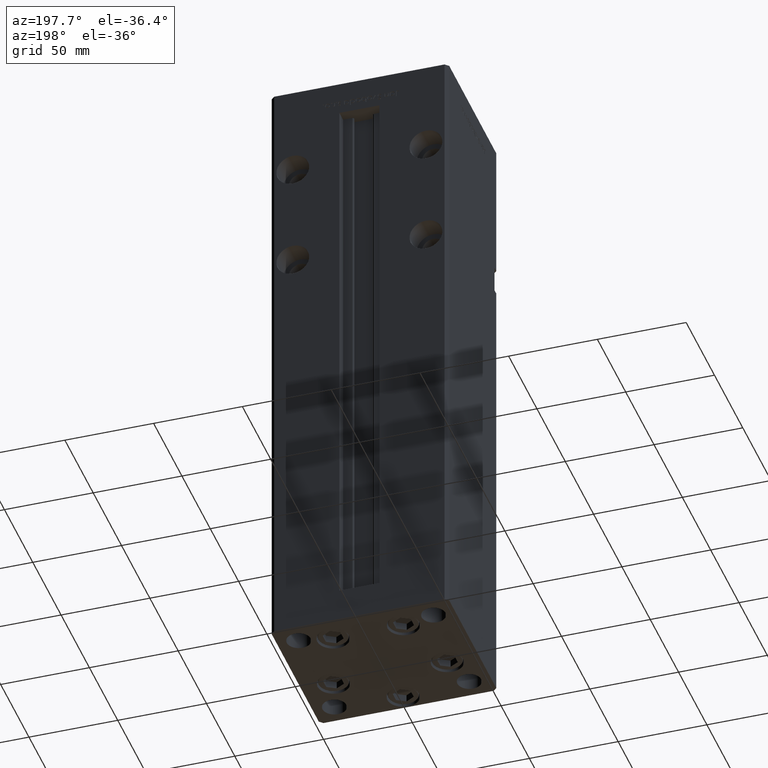
[diagram: clean part render]
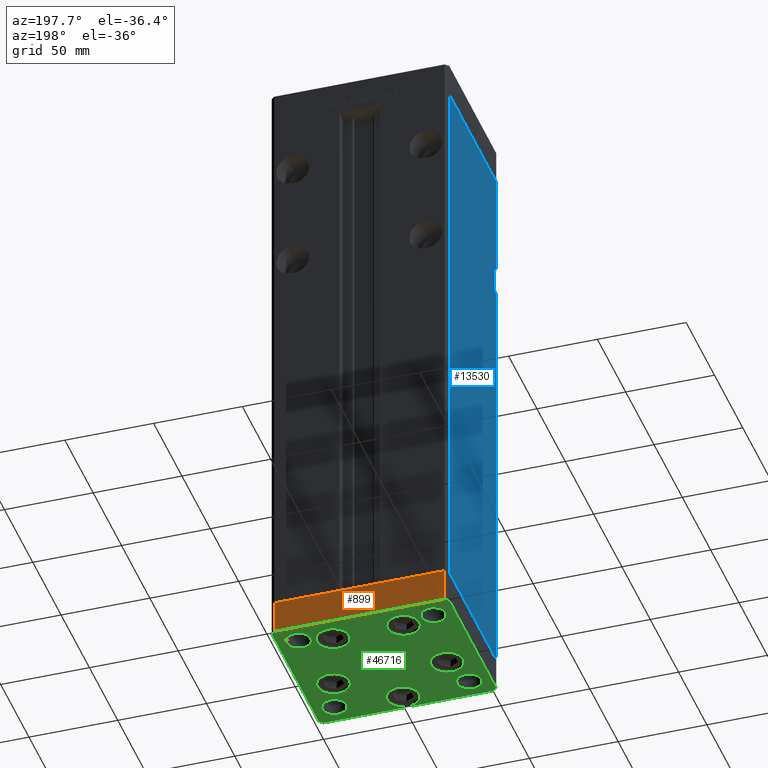
[diagram: same view with three faces highlighted in distinct colors, each labeled with its STEP entity id]
A machine part, auxiliary view with three faces highlighted in distinct colors.
Their STEP definitions:

[orange] entity #899 — the highlighted planar face has unit normal (-0, 1, 0).
#798 = CARTESIAN_POINT ( 'NONE',  ( -48.00000000000000711, 43.49999999999996447, -19.00000000000000000 ) ) ;
#899 = ADVANCED_FACE ( 'NONE', ( #23298 ), #39692, .T. ) ;
#979 = CARTESIAN_POINT ( 'NONE',  ( 47.99999999999990763, 43.50000000000000000, 0.000000000000000000 ) ) ;
#1071 = LINE ( 'NONE', #17456, #52730 ) ;
#3395 = DIRECTION ( 'NONE',  ( -3.614007241618350743E-16, 1.000000000000000000, 0.000000000000000000 ) ) ;
#4112 = CARTESIAN_POINT ( 'NONE',  ( -48.00000000000000711, 43.49999999999996447, 0.000000000000000000 ) ) ;
#5302 = VECTOR ( 'NONE', #21623, 1000.000000000000000 ) ;
#5894 = EDGE_CURVE ( 'NONE', #36776, #20163, #46331, .T. ) ;
#9705 = ORIENTED_EDGE ( 'NONE', *, *, #5894, .F. ) ;
#12896 = EDGE_CURVE ( 'NONE', #20163, #24208, #45319, .T. ) ;
#13439 = DIRECTION ( 'NONE',  ( 0.000000000000000000, 0.000000000000000000, 1.000000000000000000 ) ) ;
#16296 = AXIS2_PLACEMENT_3D ( 'NONE', #41201, #3395, #23031 ) ;
#17456 = CARTESIAN_POINT ( 'NONE',  ( -48.00000000000000711, 43.49999999999996447, -19.00000000000000000 ) ) ;
#19386 = ORIENTED_EDGE ( 'NONE', *, *, #51600, .T. ) ;
#20163 = VERTEX_POINT ( 'NONE', #29040 ) ;
#21623 = DIRECTION ( 'NONE',  ( 0.000000000000000000, 0.000000000000000000, 1.000000000000000000 ) ) ;
#23031 = DIRECTION ( 'NONE',  ( -1.000000000000000000, -3.614007241618350743E-16, 0.000000000000000000 ) ) ;
#23298 = FACE_OUTER_BOUND ( 'NONE', #51736, .T. ) ;
#24208 = VERTEX_POINT ( 'NONE', #4112 ) ;
#24885 = DIRECTION ( 'NONE',  ( -1.000000000000000000, -3.614007241618350743E-16, 0.000000000000000000 ) ) ;
#27444 = VERTEX_POINT ( 'NONE', #798 ) ;
#28284 = VECTOR ( 'NONE', #34220, 1000.000000000000000 ) ;
#29040 = CARTESIAN_POINT ( 'NONE',  ( 47.99999999999990763, 43.50000000000000000, 0.000000000000000000 ) ) ;
#30980 = LINE ( 'NONE', #47365, #28284 ) ;
#31998 = EDGE_CURVE ( 'NONE', #27444, #24208, #1071, .T. ) ;
#34220 = DIRECTION ( 'NONE',  ( -1.000000000000000000, -3.614007241618350743E-16, 0.000000000000000000 ) ) ;
#36776 = VERTEX_POINT ( 'NONE', #46236 ) ;
#37500 = ORIENTED_EDGE ( 'NONE', *, *, #12896, .F. ) ;
#39692 = PLANE ( 'NONE',  #16296 ) ;
#39827 = VECTOR ( 'NONE', #24885, 1000.000000000000000 ) ;
#41201 = CARTESIAN_POINT ( 'NONE',  ( 47.99999999999990763, 43.50000000000000000, -19.00000000000000000 ) ) ;
#42036 = CARTESIAN_POINT ( 'NONE',  ( 47.99999999999990763, 43.50000000000000000, -19.00000000000000000 ) ) ;
#45319 = LINE ( 'NONE', #979, #39827 ) ;
#46236 = CARTESIAN_POINT ( 'NONE',  ( 47.99999999999990763, 43.50000000000000000, -19.00000000000000000 ) ) ;
#46331 = LINE ( 'NONE', #42036, #5302 ) ;
#46543 = ORIENTED_EDGE ( 'NONE', *, *, #31998, .T. ) ;
#47365 = CARTESIAN_POINT ( 'NONE',  ( 47.99999999999990763, 43.50000000000000000, -19.00000000000000000 ) ) ;
#51600 = EDGE_CURVE ( 'NONE', #36776, #27444, #30980, .T. ) ;
#51736 = EDGE_LOOP ( 'NONE', ( #37500, #9705, #19386, #46543 ) ) ;
#52730 = VECTOR ( 'NONE', #13439, 1000.000000000000000 ) ;

[blue] entity #13530 — the highlighted planar face has unit normal (1, 0, 0).
#248 = DIRECTION ( 'NONE',  ( -3.344045254895050480E-16, 1.000000000000000000, 0.000000000000000000 ) ) ;
#699 = ORIENTED_EDGE ( 'NONE', *, *, #46901, .F. ) ;
#986 = ORIENTED_EDGE ( 'NONE', *, *, #23422, .T. ) ;
#2800 = CARTESIAN_POINT ( 'NONE',  ( -49.99999999999998579, -38.50000000000000000, 259.0000000000000000 ) ) ;
#3409 = LINE ( 'NONE', #48295, #15308 ) ;
#4620 = VERTEX_POINT ( 'NONE', #22922 ) ;
#4817 = DIRECTION ( 'NONE',  ( 1.000000000000000000, 3.344045254895050480E-16, -0.000000000000000000 ) ) ;
#6465 = CARTESIAN_POINT ( 'NONE',  ( -49.99999999999998579, -38.50000000000000000, 259.0000000000000000 ) ) ;
#7266 = VECTOR ( 'NONE', #37842, 1000.000000000000000 ) ;
#7449 = DIRECTION ( 'NONE',  ( -0.000000000000000000, -0.000000000000000000, -1.000000000000000000 ) ) ;
#7753 = VERTEX_POINT ( 'NONE', #16060 ) ;
#9583 = CARTESIAN_POINT ( 'NONE',  ( -49.99999999999998579, -38.50000000000000000, 244.0000000000000000 ) ) ;
#12339 = ORIENTED_EDGE ( 'NONE', *, *, #33015, .F. ) ;
#13530 = ADVANCED_FACE ( 'NONE', ( #46204 ), #17164, .F. ) ;
#14399 = DIRECTION ( 'NONE',  ( -0.000000000000000000, -1.000000000000000000, -0.000000000000000000 ) ) ;
#14751 = ORIENTED_EDGE ( 'NONE', *, *, #20686, .F. ) ;
#15308 = VECTOR ( 'NONE', #7449, 1000.000000000000000 ) ;
#15694 = VERTEX_POINT ( 'NONE', #28016 ) ;
#15977 = CARTESIAN_POINT ( 'NONE',  ( -49.99999999999998579, -38.50000000000000000, 244.0000000000000000 ) ) ;
#16060 = CARTESIAN_POINT ( 'NONE',  ( -50.00000000000001421, 41.49999999999999289, 318.5000000000000000 ) ) ;
#16325 = ORIENTED_EDGE ( 'NONE', *, *, #43694, .F. ) ;
#16810 = LINE ( 'NONE', #33229, #29585 ) ;
#17164 = PLANE ( 'NONE',  #31274 ) ;
#19497 = EDGE_CURVE ( 'NONE', #41137, #47411, #16810, .T. ) ;
#20686 = EDGE_CURVE ( 'NONE', #41137, #43715, #35596, .T. ) ;
#21115 = ORIENTED_EDGE ( 'NONE', *, *, #42721, .F. ) ;
#21758 = CARTESIAN_POINT ( 'NONE',  ( -50.00000000000001421, 41.49999999999999289, 318.5000000000000000 ) ) ;
#22122 = VERTEX_POINT ( 'NONE', #48229 ) ;
#22922 = CARTESIAN_POINT ( 'NONE',  ( -49.99999999999998579, -41.49999999999999289, 0.000000000000000000 ) ) ;
#23422 = EDGE_CURVE ( 'NONE', #7753, #24715, #25262, .T. ) ;
#24715 = VERTEX_POINT ( 'NONE', #48017 ) ;
#24924 = CARTESIAN_POINT ( 'NONE',  ( -49.99999999999998579, -41.49999999999999289, 318.5000000000000000 ) ) ;
#25262 = LINE ( 'NONE', #45418, #49444 ) ;
#27509 = EDGE_LOOP ( 'NONE', ( #12339, #699, #14751, #44566, #21115, #16325, #986, #33493 ) ) ;
#28016 = CARTESIAN_POINT ( 'NONE',  ( -49.99999999999998579, -41.49999999999999289, 318.5000000000000000 ) ) ;
#28386 = CARTESIAN_POINT ( 'NONE',  ( -49.99999999999998579, -41.49999999999999289, 259.0000000000000000 ) ) ;
#29585 = VECTOR ( 'NONE', #53112, 1000.000000000000000 ) ;
#31274 = AXIS2_PLACEMENT_3D ( 'NONE', #21758, #4817, #248 ) ;
#31836 = DIRECTION ( 'NONE',  ( 0.000000000000000000, 0.000000000000000000, -1.000000000000000000 ) ) ;
#33015 = EDGE_CURVE ( 'NONE', #22122, #4620, #33806, .T. ) ;
#33229 = CARTESIAN_POINT ( 'NONE',  ( -49.99999999999998579, -38.50000000000000000, 259.0000000000000000 ) ) ;
#33493 = ORIENTED_EDGE ( 'NONE', *, *, #49321, .T. ) ;
#33806 = LINE ( 'NONE', #24924, #7266 ) ;
#33932 = VECTOR ( 'NONE', #31836, 1000.000000000000000 ) ;
#35112 = VECTOR ( 'NONE', #45198, 1000.000000000000000 ) ;
#35596 = LINE ( 'NONE', #2800, #33932 ) ;
#36868 = VECTOR ( 'NONE', #14399, 1000.000000000000000 ) ;
#37842 = DIRECTION ( 'NONE',  ( -0.000000000000000000, -0.000000000000000000, -1.000000000000000000 ) ) ;
#40184 = LINE ( 'NONE', #49027, #50518 ) ;
#40638 = CARTESIAN_POINT ( 'NONE',  ( -50.00000000000001421, 41.49999999999999289, 0.000000000000000000 ) ) ;
#41137 = VERTEX_POINT ( 'NONE', #6465 ) ;
#42721 = EDGE_CURVE ( 'NONE', #15694, #47411, #3409, .T. ) ;
#43694 = EDGE_CURVE ( 'NONE', #7753, #15694, #40184, .T. ) ;
#43715 = VERTEX_POINT ( 'NONE', #15977 ) ;
#44477 = DIRECTION ( 'NONE',  ( 3.344045254895050973E-16, -1.000000000000000000, 0.000000000000000000 ) ) ;
#44566 = ORIENTED_EDGE ( 'NONE', *, *, #19497, .T. ) ;
#45198 = DIRECTION ( 'NONE',  ( 3.344045254895050973E-16, -1.000000000000000000, 0.000000000000000000 ) ) ;
#45418 = CARTESIAN_POINT ( 'NONE',  ( -50.00000000000001421, 41.49999999999999289, 318.5000000000000000 ) ) ;
#45959 = DIRECTION ( 'NONE',  ( -0.000000000000000000, -0.000000000000000000, -1.000000000000000000 ) ) ;
#46204 = FACE_OUTER_BOUND ( 'NONE', #27509, .T. ) ;
#46901 = EDGE_CURVE ( 'NONE', #43715, #22122, #51234, .T. ) ;
#47411 = VERTEX_POINT ( 'NONE', #28386 ) ;
#48017 = CARTESIAN_POINT ( 'NONE',  ( -50.00000000000001421, 41.49999999999999289, 0.000000000000000000 ) ) ;
#48229 = CARTESIAN_POINT ( 'NONE',  ( -49.99999999999998579, -41.49999999999999289, 244.0000000000000000 ) ) ;
#48295 = CARTESIAN_POINT ( 'NONE',  ( -49.99999999999998579, -41.49999999999999289, 318.5000000000000000 ) ) ;
#49027 = CARTESIAN_POINT ( 'NONE',  ( -50.00000000000001421, 41.49999999999999289, 318.5000000000000000 ) ) ;
#49220 = LINE ( 'NONE', #40638, #35112 ) ;
#49321 = EDGE_CURVE ( 'NONE', #24715, #4620, #49220, .T. ) ;
#49444 = VECTOR ( 'NONE', #45959, 1000.000000000000000 ) ;
#50518 = VECTOR ( 'NONE', #44477, 1000.000000000000000 ) ;
#51234 = LINE ( 'NONE', #9583, #36868 ) ;
#53112 = DIRECTION ( 'NONE',  ( -0.000000000000000000, -1.000000000000000000, -0.000000000000000000 ) ) ;

[green] entity #46716 — the highlighted planar face has unit normal (0, 0, -1).
#90 = CARTESIAN_POINT ( 'NONE',  ( -50.00000000000000000, -41.50000000000000000, 0.000000000000000000 ) ) ;
#293 = CARTESIAN_POINT ( 'NONE',  ( -32.05550741379015278, -11.33333333333333925, 0.000000000000000000 ) ) ;
#466 = CIRCLE ( 'NONE', #20233, 9.000000000000000000 ) ;
#936 = EDGE_CURVE ( 'NONE', #4834, #39088, #33474, .T. ) ;
#979 = CARTESIAN_POINT ( 'NONE',  ( 47.99999999999990763, 43.50000000000000000, 0.000000000000000000 ) ) ;
#1016 = LINE ( 'NONE', #22244, #51892 ) ;
#1110 = EDGE_CURVE ( 'NONE', #20494, #5521, #41202, .T. ) ;
#1426 = CARTESIAN_POINT ( 'NONE',  ( 32.05550741379015278, -11.33333333333333037, 0.000000000000000000 ) ) ;
#1687 = EDGE_CURVE ( 'NONE', #39088, #4834, #36077, .T. ) ;
#1847 = ORIENTED_EDGE ( 'NONE', *, *, #42699, .T. ) ;
#1972 = DIRECTION ( 'NONE',  ( 1.000000000000000000, 0.000000000000000000, 0.000000000000000000 ) ) ;
#1976 = DIRECTION ( 'NONE',  ( 1.000000000000000000, 0.000000000000000000, 0.000000000000000000 ) ) ;
#2784 = CARTESIAN_POINT ( 'NONE',  ( -28.82068048781373548, 27.62499999999999645, 0.000000000000000000 ) ) ;
#2927 = DIRECTION ( 'NONE',  ( 1.000000000000000000, 0.000000000000000000, 0.000000000000000000 ) ) ;
#3163 = FACE_BOUND ( 'NONE', #49117, .T. ) ;
#3251 = ORIENTED_EDGE ( 'NONE', *, *, #1687, .T. ) ;
#3477 = ORIENTED_EDGE ( 'NONE', *, *, #33058, .T. ) ;
#3643 = CARTESIAN_POINT ( 'NONE',  ( 38.00000000000000000, -31.49999999999999289, 0.000000000000000000 ) ) ;
#4112 = CARTESIAN_POINT ( 'NONE',  ( -48.00000000000000711, 43.49999999999996447, 0.000000000000000000 ) ) ;
#4391 = DIRECTION ( 'NONE',  ( -0.7071067811865474617, 0.7071067811865474617, 0.000000000000000000 ) ) ;
#4594 = AXIS2_PLACEMENT_3D ( 'NONE', #51504, #18181, #38873 ) ;
#4834 = VERTEX_POINT ( 'NONE', #19945 ) ;
#5041 = VERTEX_POINT ( 'NONE', #19086 ) ;
#5070 = ORIENTED_EDGE ( 'NONE', *, *, #38358, .T. ) ;
#5521 = VERTEX_POINT ( 'NONE', #49900 ) ;
#6398 = CARTESIAN_POINT ( 'NONE',  ( 47.99999999999999289, -43.50000000000001421, 0.000000000000000000 ) ) ;
#6482 = CIRCLE ( 'NONE', #8162, 6.749999999999999112 ) ;
#6887 = ORIENTED_EDGE ( 'NONE', *, *, #52163, .T. ) ;
#6910 = AXIS2_PLACEMENT_3D ( 'NONE', #29972, #9272, #33466 ) ;
#6929 = DIRECTION ( 'NONE',  ( -0.000000000000000000, 0.000000000000000000, 1.000000000000000000 ) ) ;
#7171 = AXIS2_PLACEMENT_3D ( 'NONE', #28012, #40111, #15637 ) ;
#7331 = EDGE_LOOP ( 'NONE', ( #31989, #46771 ) ) ;
#7909 = EDGE_CURVE ( 'NONE', #47480, #33907, #38000, .T. ) ;
#7982 = AXIS2_PLACEMENT_3D ( 'NONE', #31700, #27129, #2927 ) ;
#8130 = VERTEX_POINT ( 'NONE', #31026 ) ;
#8162 = AXIS2_PLACEMENT_3D ( 'NONE', #45425, #8875, #40348 ) ;
#8256 = CIRCLE ( 'NONE', #50370, 9.000000000000000000 ) ;
#8439 = CARTESIAN_POINT ( 'NONE',  ( 47.99999999999999289, -43.50000000000001421, 0.000000000000000000 ) ) ;
#8506 = DIRECTION ( 'NONE',  ( 1.000000000000000000, 0.000000000000000000, 0.000000000000000000 ) ) ;
#8875 = DIRECTION ( 'NONE',  ( -0.000000000000000000, 0.000000000000000000, 1.000000000000000000 ) ) ;
#9272 = DIRECTION ( 'NONE',  ( 0.000000000000000000, -0.000000000000000000, -1.000000000000000000 ) ) ;
#9591 = EDGE_CURVE ( 'NONE', #13537, #28808, #26015, .T. ) ;
#9877 = EDGE_LOOP ( 'NONE', ( #33327, #18667 ) ) ;
#10305 = DIRECTION ( 'NONE',  ( 0.000000000000000000, -0.000000000000000000, -1.000000000000000000 ) ) ;
#10406 = CARTESIAN_POINT ( 'NONE',  ( -38.00000000000000000, 31.50000000000000000, 0.000000000000000000 ) ) ;
#10574 = ORIENTED_EDGE ( 'NONE', *, *, #35830, .T. ) ;
#10682 = FACE_BOUND ( 'NONE', #15849, .T. ) ;
#10715 = EDGE_CURVE ( 'NONE', #12222, #22191, #49211, .T. ) ;
#10717 = DIRECTION ( 'NONE',  ( -0.7071067811865463515, -0.7071067811865487940, 0.000000000000000000 ) ) ;
#10767 = CIRCLE ( 'NONE', #34844, 9.000000000000000000 ) ;
#10869 = DIRECTION ( 'NONE',  ( 1.000000000000000000, 0.000000000000000000, 0.000000000000000000 ) ) ;
#10876 = DIRECTION ( 'NONE',  ( 0.000000000000000000, -0.000000000000000000, -1.000000000000000000 ) ) ;
#10935 = DIRECTION ( 'NONE',  ( -0.000000000000000000, 0.000000000000000000, 1.000000000000000000 ) ) ;
#11217 = FACE_BOUND ( 'NONE', #36416, .T. ) ;
#11243 = EDGE_LOOP ( 'NONE', ( #15265, #3477, #31986, #42345, #47077, #15293, #19033, #13965 ) ) ;
#11479 = FACE_BOUND ( 'NONE', #27627, .T. ) ;
#12222 = VERTEX_POINT ( 'NONE', #17244 ) ;
#12225 = AXIS2_PLACEMENT_3D ( 'NONE', #3643, #36701, #48266 ) ;
#12265 = CARTESIAN_POINT ( 'NONE',  ( 4.163799117101000559E-15, -34.00000000000000000, 0.000000000000000000 ) ) ;
#12896 = EDGE_CURVE ( 'NONE', #20163, #24208, #45319, .T. ) ;
#13122 = DIRECTION ( 'NONE',  ( 0.000000000000000000, -0.000000000000000000, -1.000000000000000000 ) ) ;
#13419 = LINE ( 'NONE', #6398, #42905 ) ;
#13537 = VERTEX_POINT ( 'NONE', #41635 ) ;
#13555 = DIRECTION ( 'NONE',  ( -0.000000000000000000, 0.000000000000000000, 1.000000000000000000 ) ) ;
#13922 = CARTESIAN_POINT ( 'NONE',  ( -37.99999999999999289, -31.50000000000000000, 0.000000000000000000 ) ) ;
#13965 = ORIENTED_EDGE ( 'NONE', *, *, #50141, .T. ) ;
#14570 = DIRECTION ( 'NONE',  ( 0.000000000000000000, -0.000000000000000000, -1.000000000000000000 ) ) ;
#14741 = EDGE_CURVE ( 'NONE', #5521, #20494, #41629, .T. ) ;
#14829 = CARTESIAN_POINT ( 'NONE',  ( 19.82068048781373193, 27.62500000000000000, 0.000000000000000000 ) ) ;
#15084 = EDGE_LOOP ( 'NONE', ( #10574, #50252 ) ) ;
#15091 = DIRECTION ( 'NONE',  ( 0.000000000000000000, -0.000000000000000000, -1.000000000000000000 ) ) ;
#15265 = ORIENTED_EDGE ( 'NONE', *, *, #33490, .T. ) ;
#15293 = ORIENTED_EDGE ( 'NONE', *, *, #12896, .T. ) ;
#15416 = AXIS2_PLACEMENT_3D ( 'NONE', #43101, #10305, #1976 ) ;
#15462 = CARTESIAN_POINT ( 'NONE',  ( -44.74999999999999289, -31.50000000000000000, 0.000000000000000000 ) ) ;
#15478 = VERTEX_POINT ( 'NONE', #44533 ) ;
#15637 = DIRECTION ( 'NONE',  ( 1.000000000000000000, 0.000000000000000000, 0.000000000000000000 ) ) ;
#15849 = EDGE_LOOP ( 'NONE', ( #38697, #48077 ) ) ;
#16144 = AXIS2_PLACEMENT_3D ( 'NONE', #13922, #51802, #38654 ) ;
#16798 = VECTOR ( 'NONE', #10717, 1000.000000000000000 ) ;
#17209 = VERTEX_POINT ( 'NONE', #48222 ) ;
#17244 = CARTESIAN_POINT ( 'NONE',  ( 31.25000000000000000, 31.49999999999999289, 0.000000000000000000 ) ) ;
#17276 = DIRECTION ( 'NONE',  ( 1.000000000000000000, 0.000000000000000000, 0.000000000000000000 ) ) ;
#17304 = CARTESIAN_POINT ( 'NONE',  ( 9.000000000000003553, -34.00000000000000000, 0.000000000000000000 ) ) ;
#17605 = AXIS2_PLACEMENT_3D ( 'NONE', #23421, #15091, #19401 ) ;
#18045 = LINE ( 'NONE', #22093, #38126 ) ;
#18181 = DIRECTION ( 'NONE',  ( 0.000000000000000000, -0.000000000000000000, -1.000000000000000000 ) ) ;
#18667 = ORIENTED_EDGE ( 'NONE', *, *, #20014, .T. ) ;
#19033 = ORIENTED_EDGE ( 'NONE', *, *, #36825, .T. ) ;
#19086 = CARTESIAN_POINT ( 'NONE',  ( -23.05550741379014923, -11.33333333333333748, 0.000000000000000000 ) ) ;
#19291 = CARTESIAN_POINT ( 'NONE',  ( -50.00000000000000711, 41.49999999999995026, 0.000000000000000000 ) ) ;
#19401 = DIRECTION ( 'NONE',  ( 1.000000000000000000, 0.000000000000000000, 0.000000000000000000 ) ) ;
#19945 = CARTESIAN_POINT ( 'NONE',  ( 23.05550741379014923, -11.33333333333333037, 0.000000000000000000 ) ) ;
#20014 = EDGE_CURVE ( 'NONE', #5041, #51253, #40781, .T. ) ;
#20163 = VERTEX_POINT ( 'NONE', #29040 ) ;
#20186 = EDGE_CURVE ( 'NONE', #22191, #12222, #6482, .T. ) ;
#20233 = AXIS2_PLACEMENT_3D ( 'NONE', #12265, #45595, #8506 ) ;
#20494 = VERTEX_POINT ( 'NONE', #40540 ) ;
#21026 = LINE ( 'NONE', #37418, #27382 ) ;
#21090 = CARTESIAN_POINT ( 'NONE',  ( 49.99999999999992184, 41.49999999999998579, 0.000000000000000000 ) ) ;
#21345 = LINE ( 'NONE', #50374, #29126 ) ;
#21609 = EDGE_CURVE ( 'NONE', #49085, #15478, #10767, .T. ) ;
#21670 = ORIENTED_EDGE ( 'NONE', *, *, #936, .T. ) ;
#21677 = EDGE_CURVE ( 'NONE', #45949, #24260, #36565, .T. ) ;
#22019 = DIRECTION ( 'NONE',  ( 0.7071067811865463515, 0.7071067811865487940, 0.000000000000000000 ) ) ;
#22093 = CARTESIAN_POINT ( 'NONE',  ( 50.00000000000000000, -41.49999999999999289, 0.000000000000000000 ) ) ;
#22165 = CIRCLE ( 'NONE', #16144, 6.749999999999999112 ) ;
#22191 = VERTEX_POINT ( 'NONE', #42757 ) ;
#22244 = CARTESIAN_POINT ( 'NONE',  ( -47.99999999999999289, -43.50000000000001421, 0.000000000000000000 ) ) ;
#23172 = CIRCLE ( 'NONE', #15416, 6.749999999999999112 ) ;
#23325 = DIRECTION ( 'NONE',  ( 1.000000000000000000, 0.000000000000000000, 0.000000000000000000 ) ) ;
#23421 = CARTESIAN_POINT ( 'NONE',  ( -32.05550741379015278, -11.33333333333333925, 0.000000000000000000 ) ) ;
#24208 = VERTEX_POINT ( 'NONE', #4112 ) ;
#24260 = VERTEX_POINT ( 'NONE', #42735 ) ;
#24469 = ORIENTED_EDGE ( 'NONE', *, *, #9591, .T. ) ;
#24491 = DIRECTION ( 'NONE',  ( 0.000000000000000000, -0.000000000000000000, -1.000000000000000000 ) ) ;
#24885 = DIRECTION ( 'NONE',  ( -1.000000000000000000, -3.614007241618350743E-16, 0.000000000000000000 ) ) ;
#25079 = CARTESIAN_POINT ( 'NONE',  ( -47.99999999999999289, -43.50000000000001421, 0.000000000000000000 ) ) ;
#25296 = EDGE_LOOP ( 'NONE', ( #31733, #37602 ) ) ;
#26015 = CIRCLE ( 'NONE', #7982, 9.000000000000000000 ) ;
#26483 = DIRECTION ( 'NONE',  ( 1.000000000000000000, 0.000000000000000000, 0.000000000000000000 ) ) ;
#26805 = DIRECTION ( 'NONE',  ( 1.000000000000000000, 0.000000000000000000, 0.000000000000000000 ) ) ;
#27129 = DIRECTION ( 'NONE',  ( 0.000000000000000000, -0.000000000000000000, -1.000000000000000000 ) ) ;
#27136 = VERTEX_POINT ( 'NONE', #15462 ) ;
#27199 = EDGE_CURVE ( 'NONE', #34452, #42041, #18045, .T. ) ;
#27351 = FACE_BOUND ( 'NONE', #9877, .T. ) ;
#27382 = VECTOR ( 'NONE', #28555, 1000.000000000000000 ) ;
#27627 = EDGE_LOOP ( 'NONE', ( #6887, #1847 ) ) ;
#28012 = CARTESIAN_POINT ( 'NONE',  ( 38.00000000000000000, 31.49999999999999289, 0.000000000000000000 ) ) ;
#28555 = DIRECTION ( 'NONE',  ( 8.360113137237628665E-17, -1.000000000000000000, 0.000000000000000000 ) ) ;
#28795 = CARTESIAN_POINT ( 'NONE',  ( 50.00000000000000000, -41.49999999999999289, 0.000000000000000000 ) ) ;
#28808 = VERTEX_POINT ( 'NONE', #2784 ) ;
#29040 = CARTESIAN_POINT ( 'NONE',  ( 47.99999999999990763, 43.50000000000000000, 0.000000000000000000 ) ) ;
#29126 = VECTOR ( 'NONE', #4391, 1000.000000000000114 ) ;
#29520 = DIRECTION ( 'NONE',  ( 1.000000000000000000, 0.000000000000000000, 0.000000000000000000 ) ) ;
#29608 = VECTOR ( 'NONE', #49813, 1000.000000000000114 ) ;
#29972 = CARTESIAN_POINT ( 'NONE',  ( 32.05550741379015278, -11.33333333333333037, 0.000000000000000000 ) ) ;
#30736 = CARTESIAN_POINT ( 'NONE',  ( -38.00000000000000000, 31.50000000000000000, 0.000000000000000000 ) ) ;
#31026 = CARTESIAN_POINT ( 'NONE',  ( -31.24999999999999289, -31.50000000000000000, 0.000000000000000000 ) ) ;
#31700 = CARTESIAN_POINT ( 'NONE',  ( -19.82068048781373903, 27.62499999999999645, 0.000000000000000000 ) ) ;
#31733 = ORIENTED_EDGE ( 'NONE', *, *, #14741, .T. ) ;
#31933 = FACE_OUTER_BOUND ( 'NONE', #11243, .T. ) ;
#31986 = ORIENTED_EDGE ( 'NONE', *, *, #46567, .T. ) ;
#31989 = ORIENTED_EDGE ( 'NONE', *, *, #20186, .F. ) ;
#32193 = FACE_BOUND ( 'NONE', #15084, .T. ) ;
#33058 = EDGE_CURVE ( 'NONE', #39995, #47109, #1016, .T. ) ;
#33327 = ORIENTED_EDGE ( 'NONE', *, *, #45245, .T. ) ;
#33466 = DIRECTION ( 'NONE',  ( 1.000000000000000000, 0.000000000000000000, 0.000000000000000000 ) ) ;
#33474 = CIRCLE ( 'NONE', #46360, 9.000000000000001776 ) ;
#33490 = EDGE_CURVE ( 'NONE', #17209, #39995, #36902, .T. ) ;
#33907 = VERTEX_POINT ( 'NONE', #49374 ) ;
#33978 = EDGE_LOOP ( 'NONE', ( #5070, #24469 ) ) ;
#34315 = AXIS2_PLACEMENT_3D ( 'NONE', #43749, #6929, #23325 ) ;
#34452 = VERTEX_POINT ( 'NONE', #28795 ) ;
#34844 = AXIS2_PLACEMENT_3D ( 'NONE', #49954, #13122, #29520 ) ;
#35425 = PLANE ( 'NONE',  #34315 ) ;
#35703 = CIRCLE ( 'NONE', #51168, 6.749999999999999112 ) ;
#35830 = EDGE_CURVE ( 'NONE', #15478, #49085, #466, .T. ) ;
#36077 = CIRCLE ( 'NONE', #6910, 9.000000000000001776 ) ;
#36342 = EDGE_CURVE ( 'NONE', #24260, #45949, #35703, .T. ) ;
#36416 = EDGE_LOOP ( 'NONE', ( #21670, #3251 ) ) ;
#36565 = CIRCLE ( 'NONE', #43388, 6.749999999999999112 ) ;
#36701 = DIRECTION ( 'NONE',  ( 0.000000000000000000, -0.000000000000000000, -1.000000000000000000 ) ) ;
#36825 = EDGE_CURVE ( 'NONE', #24208, #48530, #51853, .T. ) ;
#36902 = LINE ( 'NONE', #90, #29608 ) ;
#37418 = CARTESIAN_POINT ( 'NONE',  ( -50.00000000000000711, 41.49999999999995026, 0.000000000000000000 ) ) ;
#37602 = ORIENTED_EDGE ( 'NONE', *, *, #1110, .T. ) ;
#37858 = DIRECTION ( 'NONE',  ( 0.000000000000000000, -0.000000000000000000, -1.000000000000000000 ) ) ;
#38000 = CIRCLE ( 'NONE', #12225, 6.749999999999999112 ) ;
#38126 = VECTOR ( 'NONE', #46273, 1000.000000000000000 ) ;
#38358 = EDGE_CURVE ( 'NONE', #28808, #13537, #8256, .T. ) ;
#38386 = CARTESIAN_POINT ( 'NONE',  ( -37.99999999999999289, -31.50000000000000000, 0.000000000000000000 ) ) ;
#38632 = DIRECTION ( 'NONE',  ( 1.000000000000000000, 0.000000000000000000, 0.000000000000000000 ) ) ;
#38654 = DIRECTION ( 'NONE',  ( 1.000000000000000000, 0.000000000000000000, 0.000000000000000000 ) ) ;
#38697 = ORIENTED_EDGE ( 'NONE', *, *, #7909, .T. ) ;
#38873 = DIRECTION ( 'NONE',  ( 1.000000000000000000, 0.000000000000000000, 0.000000000000000000 ) ) ;
#39088 = VERTEX_POINT ( 'NONE', #46394 ) ;
#39827 = VECTOR ( 'NONE', #24885, 1000.000000000000000 ) ;
#39987 = FACE_BOUND ( 'NONE', #7331, .T. ) ;
#39995 = VERTEX_POINT ( 'NONE', #25079 ) ;
#40111 = DIRECTION ( 'NONE',  ( -0.000000000000000000, 0.000000000000000000, 1.000000000000000000 ) ) ;
#40348 = DIRECTION ( 'NONE',  ( 1.000000000000000000, 0.000000000000000000, 0.000000000000000000 ) ) ;
#40540 = CARTESIAN_POINT ( 'NONE',  ( 28.82068048781372838, 27.62500000000000000, 0.000000000000000000 ) ) ;
#40781 = CIRCLE ( 'NONE', #17605, 9.000000000000001776 ) ;
#40885 = DIRECTION ( 'NONE',  ( 1.000000000000000000, 0.000000000000000000, 0.000000000000000000 ) ) ;
#41202 = CIRCLE ( 'NONE', #47199, 8.999999999999998224 ) ;
#41629 = CIRCLE ( 'NONE', #4594, 8.999999999999998224 ) ;
#41635 = CARTESIAN_POINT ( 'NONE',  ( -10.82068048781373903, 27.62499999999999645, 0.000000000000000000 ) ) ;
#42041 = VERTEX_POINT ( 'NONE', #21090 ) ;
#42345 = ORIENTED_EDGE ( 'NONE', *, *, #27199, .T. ) ;
#42699 = EDGE_CURVE ( 'NONE', #27136, #8130, #22165, .T. ) ;
#42735 = CARTESIAN_POINT ( 'NONE',  ( -44.75000000000000000, 31.50000000000000000, 0.000000000000000000 ) ) ;
#42757 = CARTESIAN_POINT ( 'NONE',  ( 44.75000000000000000, 31.49999999999999289, 0.000000000000000000 ) ) ;
#42905 = VECTOR ( 'NONE', #22019, 1000.000000000000000 ) ;
#43101 = CARTESIAN_POINT ( 'NONE',  ( 38.00000000000000000, -31.49999999999999289, 0.000000000000000000 ) ) ;
#43313 = ORIENTED_EDGE ( 'NONE', *, *, #21677, .F. ) ;
#43388 = AXIS2_PLACEMENT_3D ( 'NONE', #10406, #10935, #26805 ) ;
#43736 = CIRCLE ( 'NONE', #50663, 6.749999999999999112 ) ;
#43749 = CARTESIAN_POINT ( 'NONE',  ( 0.000000000000000000, 0.000000000000000000, 0.000000000000000000 ) ) ;
#44315 = CARTESIAN_POINT ( 'NONE',  ( -48.00000000000000711, 43.49999999999996447, 0.000000000000000000 ) ) ;
#44518 = CARTESIAN_POINT ( 'NONE',  ( 44.75000000000000000, -31.49999999999999289, 0.000000000000000000 ) ) ;
#44533 = CARTESIAN_POINT ( 'NONE',  ( -8.999999999999996447, -34.00000000000000000, 0.000000000000000000 ) ) ;
#45245 = EDGE_CURVE ( 'NONE', #51253, #5041, #47080, .T. ) ;
#45319 = LINE ( 'NONE', #979, #39827 ) ;
#45425 = CARTESIAN_POINT ( 'NONE',  ( 38.00000000000000000, 31.49999999999999289, 0.000000000000000000 ) ) ;
#45595 = DIRECTION ( 'NONE',  ( 0.000000000000000000, -0.000000000000000000, -1.000000000000000000 ) ) ;
#45815 = EDGE_CURVE ( 'NONE', #42041, #20163, #21345, .T. ) ;
#45949 = VERTEX_POINT ( 'NONE', #47644 ) ;
#46046 = DIRECTION ( 'NONE',  ( 0.000000000000000000, -0.000000000000000000, -1.000000000000000000 ) ) ;
#46273 = DIRECTION ( 'NONE',  ( -1.003213576468515193E-15, 1.000000000000000000, 0.000000000000000000 ) ) ;
#46360 = AXIS2_PLACEMENT_3D ( 'NONE', #1426, #46046, #17276 ) ;
#46394 = CARTESIAN_POINT ( 'NONE',  ( 41.05550741379015278, -11.33333333333332860, 0.000000000000000000 ) ) ;
#46567 = EDGE_CURVE ( 'NONE', #47109, #34452, #13419, .T. ) ;
#46716 = ADVANCED_FACE ( 'NONE', ( #47782, #47516, #11217, #32193, #27351, #39987, #10682, #3163, #31933, #11479 ), #35425, .T. ) ;
#46771 = ORIENTED_EDGE ( 'NONE', *, *, #10715, .F. ) ;
#47077 = ORIENTED_EDGE ( 'NONE', *, *, #45815, .T. ) ;
#47080 = CIRCLE ( 'NONE', #53099, 9.000000000000001776 ) ;
#47109 = VERTEX_POINT ( 'NONE', #8439 ) ;
#47199 = AXIS2_PLACEMENT_3D ( 'NONE', #14829, #14570, #51401 ) ;
#47480 = VERTEX_POINT ( 'NONE', #44518 ) ;
#47516 = FACE_BOUND ( 'NONE', #25296, .T. ) ;
#47644 = CARTESIAN_POINT ( 'NONE',  ( -31.25000000000000000, 31.50000000000000000, 0.000000000000000000 ) ) ;
#47705 = CARTESIAN_POINT ( 'NONE',  ( -19.82068048781373903, 27.62499999999999645, 0.000000000000000000 ) ) ;
#47782 = FACE_BOUND ( 'NONE', #33978, .T. ) ;
#48012 = CARTESIAN_POINT ( 'NONE',  ( -41.05550741379015278, -11.33333333333333925, 0.000000000000000000 ) ) ;
#48077 = ORIENTED_EDGE ( 'NONE', *, *, #52824, .T. ) ;
#48222 = CARTESIAN_POINT ( 'NONE',  ( -50.00000000000000000, -41.50000000000000000, 0.000000000000000000 ) ) ;
#48266 = DIRECTION ( 'NONE',  ( 1.000000000000000000, 0.000000000000000000, 0.000000000000000000 ) ) ;
#48530 = VERTEX_POINT ( 'NONE', #19291 ) ;
#48729 = ORIENTED_EDGE ( 'NONE', *, *, #36342, .F. ) ;
#49085 = VERTEX_POINT ( 'NONE', #17304 ) ;
#49117 = EDGE_LOOP ( 'NONE', ( #43313, #48729 ) ) ;
#49211 = CIRCLE ( 'NONE', #7171, 6.749999999999999112 ) ;
#49374 = CARTESIAN_POINT ( 'NONE',  ( 31.25000000000000000, -31.49999999999999289, 0.000000000000000000 ) ) ;
#49813 = DIRECTION ( 'NONE',  ( 0.7071067811865474617, -0.7071067811865474617, 0.000000000000000000 ) ) ;
#49900 = CARTESIAN_POINT ( 'NONE',  ( 10.82068048781373193, 27.62500000000000000, 0.000000000000000000 ) ) ;
#49954 = CARTESIAN_POINT ( 'NONE',  ( 4.163799117101000559E-15, -34.00000000000000000, 0.000000000000000000 ) ) ;
#50141 = EDGE_CURVE ( 'NONE', #48530, #17209, #21026, .T. ) ;
#50252 = ORIENTED_EDGE ( 'NONE', *, *, #21609, .T. ) ;
#50370 = AXIS2_PLACEMENT_3D ( 'NONE', #47705, #10876, #26483 ) ;
#50374 = CARTESIAN_POINT ( 'NONE',  ( 49.99999999999992184, 41.49999999999998579, 0.000000000000000000 ) ) ;
#50663 = AXIS2_PLACEMENT_3D ( 'NONE', #38386, #37858, #10869 ) ;
#51168 = AXIS2_PLACEMENT_3D ( 'NONE', #30736, #13555, #1972 ) ;
#51253 = VERTEX_POINT ( 'NONE', #48012 ) ;
#51401 = DIRECTION ( 'NONE',  ( 1.000000000000000000, 0.000000000000000000, 0.000000000000000000 ) ) ;
#51504 = CARTESIAN_POINT ( 'NONE',  ( 19.82068048781373193, 27.62500000000000000, 0.000000000000000000 ) ) ;
#51802 = DIRECTION ( 'NONE',  ( 0.000000000000000000, -0.000000000000000000, -1.000000000000000000 ) ) ;
#51853 = LINE ( 'NONE', #44315, #16798 ) ;
#51892 = VECTOR ( 'NONE', #38632, 1000.000000000000000 ) ;
#52163 = EDGE_CURVE ( 'NONE', #8130, #27136, #43736, .T. ) ;
#52824 = EDGE_CURVE ( 'NONE', #33907, #47480, #23172, .T. ) ;
#53099 = AXIS2_PLACEMENT_3D ( 'NONE', #293, #24491, #40885 ) ;